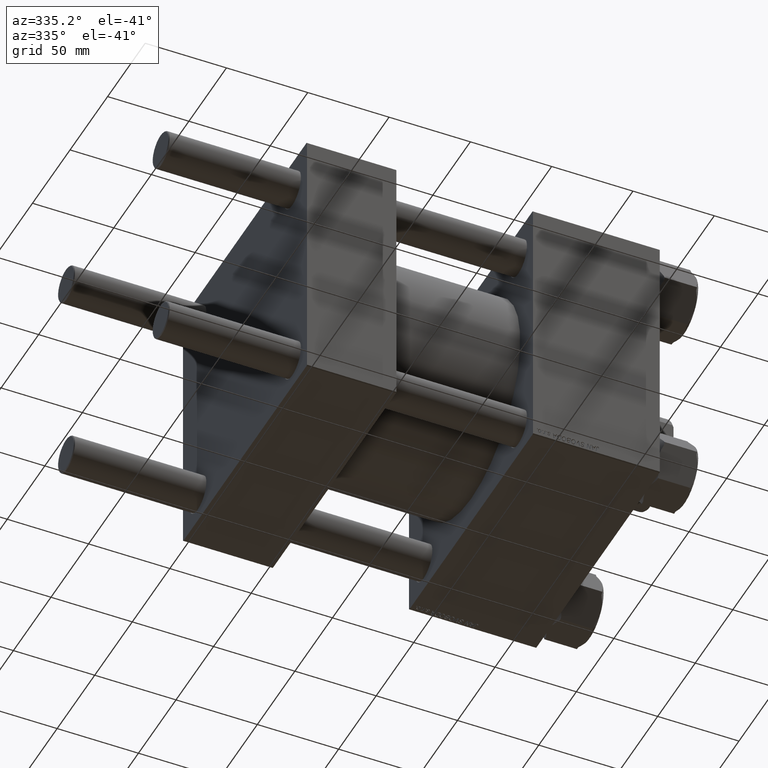
[diagram: clean part render]
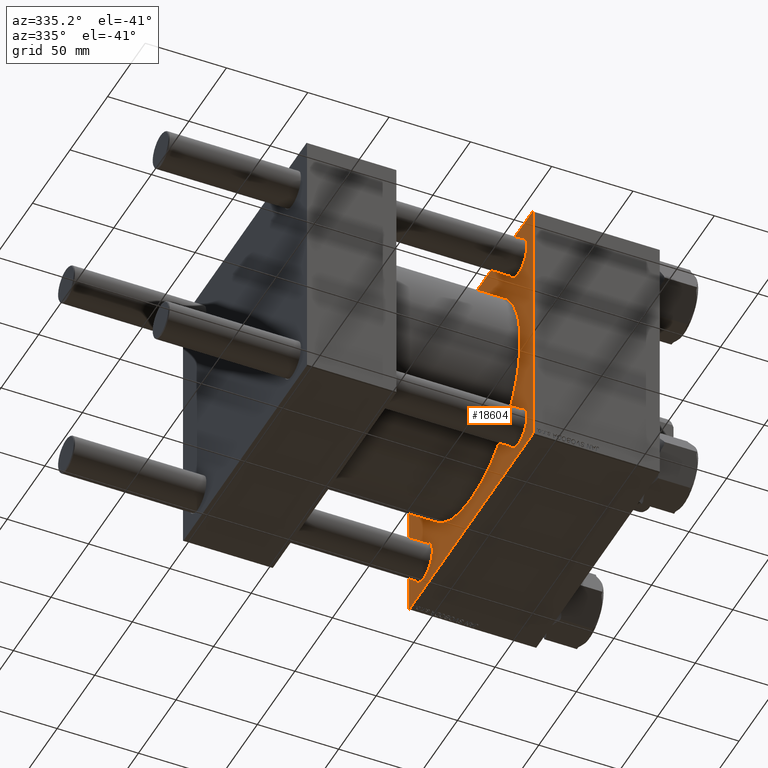
[diagram: same view with one face highlighted and labeled with its STEP entity id]
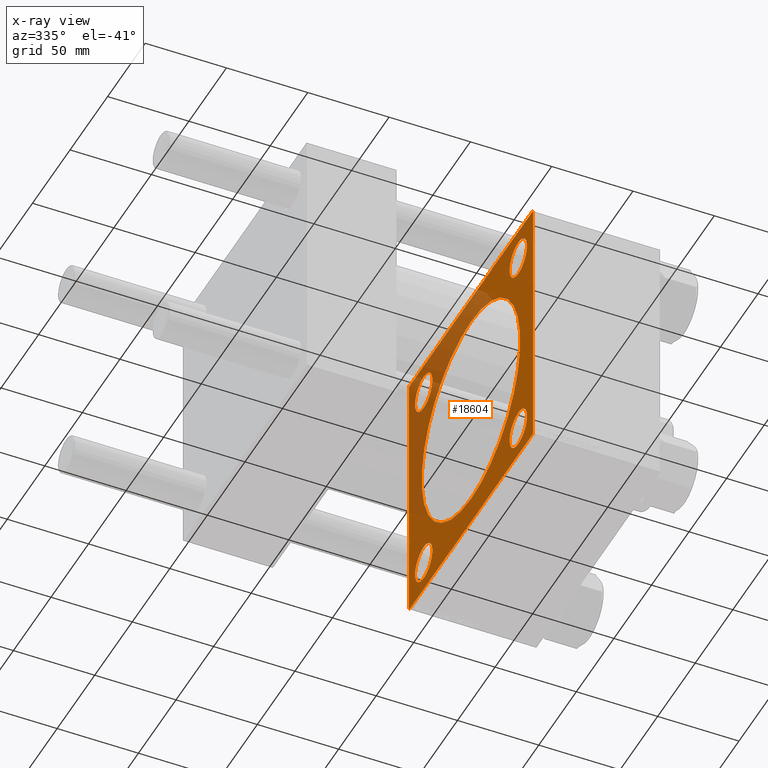
[diagram: x-ray of the same camera — body ghosted, the highlighted face saturated]
A machine part, auxiliary view. The second image highlights one B-rep face of the part: STEP entity #18604.
The next image is the same camera in x-ray: the body ghosted, the highlighted face saturated — about 31% of this face is hidden behind the body in this view.
In plain terms, the highlighted planar face has unit normal (-1, 0, 0).
Its self-contained STEP definition (entity closure, byte-faithful):
#444 = CARTESIAN_POINT ( 'NONE',  ( 139.0000000000000000, -62.94999999999998153, -62.95000000000001705 ) ) ;
#471 = VERTEX_POINT ( 'NONE', #8357 ) ;
#734 = LINE ( 'NONE', #23946, #47066 ) ;
#1587 = DIRECTION ( 'NONE',  ( 1.000000000000000000, 0.000000000000000000, -0.000000000000000000 ) ) ;
#1899 = LINE ( 'NONE', #2645, #44301 ) ;
#1931 = FACE_BOUND ( 'NONE', #46616, .T. ) ;
#2183 = DIRECTION ( 'NONE',  ( 0.000000000000000000, -1.000000000000000000, -1.682156097916904081E-16 ) ) ;
#2428 = CARTESIAN_POINT ( 'NONE',  ( 139.0000000000000000, -62.94999999999998153, 62.95000000000001705 ) ) ;
#2645 = CARTESIAN_POINT ( 'NONE',  ( 139.0000000000000000, -82.25000000000116529, -82.24999999999889155 ) ) ;
#2674 = CARTESIAN_POINT ( 'NONE',  ( 139.0000000000000000, 0.000000000000000000, 0.000000000000000000 ) ) ;
#2680 = DIRECTION ( 'NONE',  ( 0.000000000000000000, 0.000000000000000000, 1.000000000000000000 ) ) ;
#2953 = ORIENTED_EDGE ( 'NONE', *, *, #49355, .T. ) ;
#3386 = EDGE_CURVE ( 'NONE', #28820, #9220, #20986, .T. ) ;
#3558 = CARTESIAN_POINT ( 'NONE',  ( 139.0000000000000000, -62.94999999999998153, -74.44999999999991758 ) ) ;
#3575 = AXIS2_PLACEMENT_3D ( 'NONE', #27617, #1587, #37056 ) ;
#3649 = LINE ( 'NONE', #50324, #11382 ) ;
#4619 = CARTESIAN_POINT ( 'NONE',  ( 139.0000000000000000, -62.94999999999998153, 74.44999999999991758 ) ) ;
#5039 = CIRCLE ( 'NONE', #18071, 11.49999999999989875 ) ;
#5124 = EDGE_CURVE ( 'NONE', #38158, #43866, #37694, .T. ) ;
#5147 = CARTESIAN_POINT ( 'NONE',  ( 139.0000000000000000, 82.25000000000001421, 82.25000000000001421 ) ) ;
#5256 = CARTESIAN_POINT ( 'NONE',  ( 139.0000000000000000, 82.50000000000001421, 82.50000000000000000 ) ) ;
#5516 = PLANE ( 'NONE',  #41756 ) ;
#5669 = EDGE_LOOP ( 'NONE', ( #37348, #28167 ) ) ;
#5766 = DIRECTION ( 'NONE',  ( 1.000000000000000000, 0.000000000000000000, 0.000000000000000000 ) ) ;
#6564 = EDGE_CURVE ( 'NONE', #26671, #48421, #37417, .T. ) ;
#7358 = EDGE_CURVE ( 'NONE', #15171, #41606, #30897, .T. ) ;
#7450 = DIRECTION ( 'NONE',  ( 0.000000000000000000, 0.000000000000000000, -1.000000000000000000 ) ) ;
#7692 = CARTESIAN_POINT ( 'NONE',  ( 139.0000000000000000, -62.94999999999998153, 62.95000000000001705 ) ) ;
#7715 = ORIENTED_EDGE ( 'NONE', *, *, #10403, .F. ) ;
#8357 = CARTESIAN_POINT ( 'NONE',  ( 139.0000000000000000, 82.00000000000004263, 82.50000000000000000 ) ) ;
#8578 = DIRECTION ( 'NONE',  ( 0.000000000000000000, 0.000000000000000000, 1.000000000000000000 ) ) ;
#8610 = ORIENTED_EDGE ( 'NONE', *, *, #17041, .T. ) ;
#9220 = VERTEX_POINT ( 'NONE', #42163 ) ;
#9291 = ORIENTED_EDGE ( 'NONE', *, *, #7358, .T. ) ;
#10390 = AXIS2_PLACEMENT_3D ( 'NONE', #25309, #21233, #29894 ) ;
#10403 = EDGE_CURVE ( 'NONE', #18344, #36054, #38034, .T. ) ;
#10803 = VERTEX_POINT ( 'NONE', #20322 ) ;
#11004 = EDGE_CURVE ( 'NONE', #471, #48277, #29232, .T. ) ;
#11382 = VECTOR ( 'NONE', #34279, 1000.000000000000114 ) ;
#11401 = EDGE_CURVE ( 'NONE', #18344, #48277, #3649, .T. ) ;
#11530 = DIRECTION ( 'NONE',  ( 1.000000000000000000, 0.000000000000000000, -0.000000000000000000 ) ) ;
#12671 = FACE_BOUND ( 'NONE', #50105, .T. ) ;
#12709 = DIRECTION ( 'NONE',  ( 0.000000000000000000, 0.000000000000000000, 1.000000000000000000 ) ) ;
#12877 = VECTOR ( 'NONE', #26475, 1000.000000000000000 ) ;
#12967 = CARTESIAN_POINT ( 'NONE',  ( 139.0000000000000000, 62.95000000000000284, -62.95000000000000284 ) ) ;
#13645 = CARTESIAN_POINT ( 'NONE',  ( 139.0000000000000000, -62.94999999999998153, 51.45000000000012363 ) ) ;
#14068 = CIRCLE ( 'NONE', #20573, 11.49999999999989875 ) ;
#14254 = DIRECTION ( 'NONE',  ( 1.000000000000000000, 0.000000000000000000, -0.000000000000000000 ) ) ;
#14438 = CARTESIAN_POINT ( 'NONE',  ( 139.0000000000000000, 0.000000000000000000, 65.50000000000001421 ) ) ;
#14732 = AXIS2_PLACEMENT_3D ( 'NONE', #42303, #14254, #21638 ) ;
#14747 = EDGE_CURVE ( 'NONE', #10803, #28209, #49763, .T. ) ;
#15025 = ORIENTED_EDGE ( 'NONE', *, *, #45158, .T. ) ;
#15171 = VERTEX_POINT ( 'NONE', #23576 ) ;
#16490 = FACE_BOUND ( 'NONE', #5669, .T. ) ;
#16667 = CARTESIAN_POINT ( 'NONE',  ( 139.0000000000000000, -62.94999999999998153, -62.95000000000001705 ) ) ;
#17024 = VECTOR ( 'NONE', #2183, 1000.000000000000000 ) ;
#17041 = EDGE_CURVE ( 'NONE', #20992, #32770, #5039, .T. ) ;
#17453 = CARTESIAN_POINT ( 'NONE',  ( 139.0000000000000000, -82.49999999999997158, 82.49999999999997158 ) ) ;
#17988 = CARTESIAN_POINT ( 'NONE',  ( 139.0000000000000000, 82.00000000000004263, -82.50000000000002842 ) ) ;
#18071 = AXIS2_PLACEMENT_3D ( 'NONE', #444, #27487, #31567 ) ;
#18344 = VERTEX_POINT ( 'NONE', #25522 ) ;
#18547 = CARTESIAN_POINT ( 'NONE',  ( 139.0000000000000000, -62.94999999999998153, -51.45000000000012363 ) ) ;
#18604 = ADVANCED_FACE ( 'NONE', ( #24900, #1931, #16490, #43541, #12671, #43791 ), #5516, .T. ) ;
#19179 = EDGE_CURVE ( 'NONE', #471, #49316, #43920, .T. ) ;
#19605 = AXIS2_PLACEMENT_3D ( 'NONE', #12967, #35422, #12709 ) ;
#20322 = CARTESIAN_POINT ( 'NONE',  ( 139.0000000000000000, 62.95000000000000284, -74.44999999999990337 ) ) ;
#20573 = AXIS2_PLACEMENT_3D ( 'NONE', #16667, #28900, #20742 ) ;
#20718 = AXIS2_PLACEMENT_3D ( 'NONE', #2428, #37394, #2680 ) ;
#20742 = DIRECTION ( 'NONE',  ( 0.000000000000000000, 0.000000000000000000, 1.000000000000000000 ) ) ;
#20986 = CIRCLE ( 'NONE', #10390, 11.49999999999989875 ) ;
#20992 = VERTEX_POINT ( 'NONE', #18547 ) ;
#21095 = AXIS2_PLACEMENT_3D ( 'NONE', #46480, #42404, #7450 ) ;
#21233 = DIRECTION ( 'NONE',  ( 1.000000000000000000, 0.000000000000000000, -0.000000000000000000 ) ) ;
#21638 = DIRECTION ( 'NONE',  ( 0.000000000000000000, 0.000000000000000000, 1.000000000000000000 ) ) ;
#23129 = CARTESIAN_POINT ( 'NONE',  ( 139.0000000000000000, 82.50000000000001421, -82.50000000000002842 ) ) ;
#23192 = EDGE_CURVE ( 'NONE', #9220, #28820, #46770, .T. ) ;
#23449 = ORIENTED_EDGE ( 'NONE', *, *, #19179, .T. ) ;
#23576 = CARTESIAN_POINT ( 'NONE',  ( 139.0000000000000000, 8.021436534415164826E-15, -65.50000000000001421 ) ) ;
#23752 = DIRECTION ( 'NONE',  ( 0.000000000000000000, 0.7071067811865474617, -0.7071067811865474617 ) ) ;
#23946 = CARTESIAN_POINT ( 'NONE',  ( 139.0000000000000000, 82.25000000000002842, -82.25000000000002842 ) ) ;
#24348 = AXIS2_PLACEMENT_3D ( 'NONE', #2674, #5766, #25891 ) ;
#24783 = ORIENTED_EDGE ( 'NONE', *, *, #6564, .T. ) ;
#24884 = DIRECTION ( 'NONE',  ( 0.000000000000000000, 0.000000000000000000, -1.000000000000000000 ) ) ;
#24900 = FACE_BOUND ( 'NONE', #36941, .T. ) ;
#25309 = CARTESIAN_POINT ( 'NONE',  ( 139.0000000000000000, 62.95000000000000284, 62.95000000000000284 ) ) ;
#25522 = CARTESIAN_POINT ( 'NONE',  ( 139.0000000000000000, -82.49999999999997158, 81.99999999999991473 ) ) ;
#25891 = DIRECTION ( 'NONE',  ( 0.000000000000000000, 0.000000000000000000, -1.000000000000000000 ) ) ;
#26173 = CARTESIAN_POINT ( 'NONE',  ( 139.0000000000000000, 82.50000000000001421, -82.00000000000005684 ) ) ;
#26475 = DIRECTION ( 'NONE',  ( 0.000000000000000000, -1.000000000000000000, 0.000000000000000000 ) ) ;
#26671 = VERTEX_POINT ( 'NONE', #13645 ) ;
#27117 = ORIENTED_EDGE ( 'NONE', *, *, #11401, .T. ) ;
#27487 = DIRECTION ( 'NONE',  ( 1.000000000000000000, 0.000000000000000000, -0.000000000000000000 ) ) ;
#27617 = CARTESIAN_POINT ( 'NONE',  ( 139.0000000000000000, 62.95000000000000284, 62.95000000000000284 ) ) ;
#28167 = ORIENTED_EDGE ( 'NONE', *, *, #14747, .T. ) ;
#28209 = VERTEX_POINT ( 'NONE', #35941 ) ;
#28408 = DIRECTION ( 'NONE',  ( 0.000000000000000000, -1.682156097916903834E-16, -1.000000000000000000 ) ) ;
#28820 = VERTEX_POINT ( 'NONE', #46988 ) ;
#28900 = DIRECTION ( 'NONE',  ( 1.000000000000000000, 0.000000000000000000, -0.000000000000000000 ) ) ;
#29018 = ORIENTED_EDGE ( 'NONE', *, *, #3386, .T. ) ;
#29105 = ORIENTED_EDGE ( 'NONE', *, *, #5124, .T. ) ;
#29232 = LINE ( 'NONE', #44317, #17024 ) ;
#29240 = EDGE_CURVE ( 'NONE', #29708, #38158, #734, .T. ) ;
#29252 = AXIS2_PLACEMENT_3D ( 'NONE', #7692, #11530, #30405 ) ;
#29547 = EDGE_LOOP ( 'NONE', ( #8610, #15025 ) ) ;
#29708 = VERTEX_POINT ( 'NONE', #26173 ) ;
#29894 = DIRECTION ( 'NONE',  ( 0.000000000000000000, 0.000000000000000000, 1.000000000000000000 ) ) ;
#30405 = DIRECTION ( 'NONE',  ( 0.000000000000000000, 0.000000000000000000, 1.000000000000000000 ) ) ;
#30897 = CIRCLE ( 'NONE', #21095, 65.50000000000001421 ) ;
#31180 = VECTOR ( 'NONE', #24884, 1000.000000000000000 ) ;
#31567 = DIRECTION ( 'NONE',  ( 0.000000000000000000, 0.000000000000000000, 1.000000000000000000 ) ) ;
#32518 = ORIENTED_EDGE ( 'NONE', *, *, #44864, .T. ) ;
#32770 = VERTEX_POINT ( 'NONE', #3558 ) ;
#32992 = CARTESIAN_POINT ( 'NONE',  ( 139.0000000000000000, -81.99999999999990052, 82.49999999999997158 ) ) ;
#32993 = EDGE_CURVE ( 'NONE', #41606, #15171, #48015, .T. ) ;
#34279 = DIRECTION ( 'NONE',  ( -0.000000000000000000, 0.7071067811865573427, 0.7071067811865376918 ) ) ;
#34296 = CIRCLE ( 'NONE', #19605, 11.49999999999989875 ) ;
#35422 = DIRECTION ( 'NONE',  ( 1.000000000000000000, 0.000000000000000000, -0.000000000000000000 ) ) ;
#35747 = EDGE_CURVE ( 'NONE', #28209, #10803, #34296, .T. ) ;
#35941 = CARTESIAN_POINT ( 'NONE',  ( 139.0000000000000000, 62.95000000000000284, -51.45000000000010942 ) ) ;
#36054 = VERTEX_POINT ( 'NONE', #39433 ) ;
#36543 = ORIENTED_EDGE ( 'NONE', *, *, #32993, .T. ) ;
#36941 = EDGE_LOOP ( 'NONE', ( #2953, #24783 ) ) ;
#37056 = DIRECTION ( 'NONE',  ( 0.000000000000000000, 0.000000000000000000, 1.000000000000000000 ) ) ;
#37348 = ORIENTED_EDGE ( 'NONE', *, *, #35747, .T. ) ;
#37394 = DIRECTION ( 'NONE',  ( 1.000000000000000000, 0.000000000000000000, -0.000000000000000000 ) ) ;
#37417 = CIRCLE ( 'NONE', #29252, 11.49999999999989875 ) ;
#37694 = LINE ( 'NONE', #23129, #12877 ) ;
#38034 = LINE ( 'NONE', #17453, #39841 ) ;
#38158 = VERTEX_POINT ( 'NONE', #17988 ) ;
#38425 = ORIENTED_EDGE ( 'NONE', *, *, #23192, .T. ) ;
#39433 = CARTESIAN_POINT ( 'NONE',  ( 139.0000000000000000, -82.50000000000000000, -82.00000000000005684 ) ) ;
#39458 = EDGE_LOOP ( 'NONE', ( #29105, #44034, #7715, #27117, #48795, #23449, #32518, #43383 ) ) ;
#39610 = CARTESIAN_POINT ( 'NONE',  ( 139.0000000000000000, -82.00000000000004263, -82.50000000000002842 ) ) ;
#39841 = VECTOR ( 'NONE', #28408, 1000.000000000000000 ) ;
#39964 = CARTESIAN_POINT ( 'NONE',  ( 139.0000000000000000, 0.000000000000000000, 0.000000000000000000 ) ) ;
#40149 = VECTOR ( 'NONE', #23752, 1000.000000000000114 ) ;
#41606 = VERTEX_POINT ( 'NONE', #14438 ) ;
#41756 = AXIS2_PLACEMENT_3D ( 'NONE', #39964, #47874, #8578 ) ;
#42163 = CARTESIAN_POINT ( 'NONE',  ( 139.0000000000000000, 62.95000000000000284, 51.45000000000010942 ) ) ;
#42237 = CARTESIAN_POINT ( 'NONE',  ( 139.0000000000000000, 82.50000000000001421, 82.00000000000002842 ) ) ;
#42303 = CARTESIAN_POINT ( 'NONE',  ( 139.0000000000000000, 62.95000000000000284, -62.95000000000000284 ) ) ;
#42404 = DIRECTION ( 'NONE',  ( 1.000000000000000000, 0.000000000000000000, 0.000000000000000000 ) ) ;
#42732 = CIRCLE ( 'NONE', #20718, 11.49999999999989875 ) ;
#43383 = ORIENTED_EDGE ( 'NONE', *, *, #29240, .T. ) ;
#43541 = FACE_BOUND ( 'NONE', #29547, .T. ) ;
#43791 = FACE_OUTER_BOUND ( 'NONE', #39458, .T. ) ;
#43866 = VERTEX_POINT ( 'NONE', #39610 ) ;
#43920 = LINE ( 'NONE', #5147, #40149 ) ;
#44034 = ORIENTED_EDGE ( 'NONE', *, *, #47701, .T. ) ;
#44287 = LINE ( 'NONE', #5256, #31180 ) ;
#44301 = VECTOR ( 'NONE', #45269, 999.9999999999998863 ) ;
#44317 = CARTESIAN_POINT ( 'NONE',  ( 139.0000000000000000, 82.50000000000001421, 82.50000000000000000 ) ) ;
#44864 = EDGE_CURVE ( 'NONE', #49316, #29708, #44287, .T. ) ;
#45158 = EDGE_CURVE ( 'NONE', #32770, #20992, #14068, .T. ) ;
#45269 = DIRECTION ( 'NONE',  ( 0.000000000000000000, -0.7071067811865376918, 0.7071067811865574537 ) ) ;
#46480 = CARTESIAN_POINT ( 'NONE',  ( 139.0000000000000000, 0.000000000000000000, 0.000000000000000000 ) ) ;
#46616 = EDGE_LOOP ( 'NONE', ( #29018, #38425 ) ) ;
#46770 = CIRCLE ( 'NONE', #3575, 11.49999999999989875 ) ;
#46988 = CARTESIAN_POINT ( 'NONE',  ( 139.0000000000000000, 62.95000000000000284, 74.44999999999990337 ) ) ;
#47066 = VECTOR ( 'NONE', #47181, 1000.000000000000114 ) ;
#47181 = DIRECTION ( 'NONE',  ( -0.000000000000000000, -0.7071067811865474617, -0.7071067811865474617 ) ) ;
#47701 = EDGE_CURVE ( 'NONE', #43866, #36054, #1899, .T. ) ;
#47874 = DIRECTION ( 'NONE',  ( -1.000000000000000000, -0.000000000000000000, 0.000000000000000000 ) ) ;
#48015 = CIRCLE ( 'NONE', #24348, 65.50000000000001421 ) ;
#48277 = VERTEX_POINT ( 'NONE', #32992 ) ;
#48421 = VERTEX_POINT ( 'NONE', #4619 ) ;
#48795 = ORIENTED_EDGE ( 'NONE', *, *, #11004, .F. ) ;
#49316 = VERTEX_POINT ( 'NONE', #42237 ) ;
#49355 = EDGE_CURVE ( 'NONE', #48421, #26671, #42732, .T. ) ;
#49763 = CIRCLE ( 'NONE', #14732, 11.49999999999989875 ) ;
#50105 = EDGE_LOOP ( 'NONE', ( #36543, #9291 ) ) ;
#50324 = CARTESIAN_POINT ( 'NONE',  ( 139.0000000000000000, -82.24999999999880629, 82.25000000000108002 ) ) ;